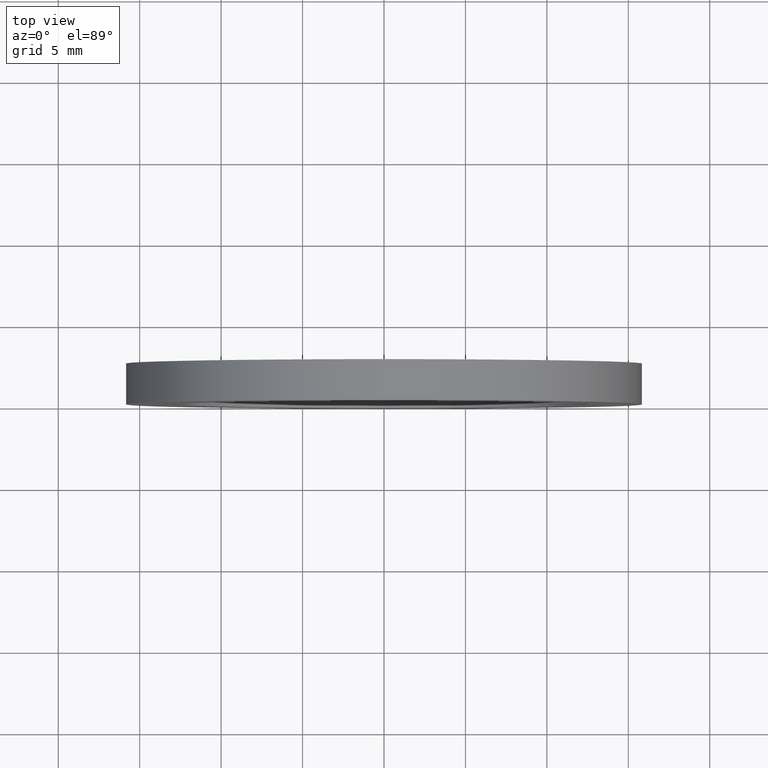
[diagram: clean part render]
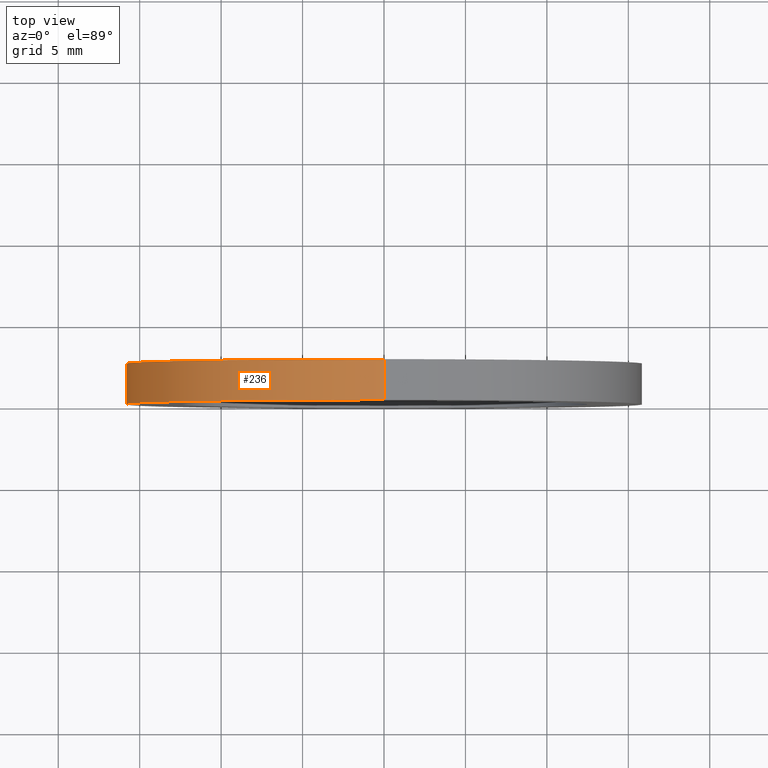
[diagram: same view with one face highlighted and labeled with its STEP entity id]
A machine part, top view. The second image highlights one B-rep face of the part: STEP entity #236.
In plain terms, the highlighted cylindrical surface (partial cylindrical patch) has radius 15.875 mm, axis along (-0, 1, -0).
Its self-contained STEP definition (entity closure, byte-faithful):
#2 = ORIENTED_EDGE ( 'NONE', *, *, #125, .F. ) ;
#5 = LINE ( 'NONE', #75, #45 ) ;
#7 = CARTESIAN_POINT ( 'NONE',  ( 1.944126793646424800E-015, 0.0000000000000000000, -15.87500000000001100 ) ) ;
#8 = AXIS2_PLACEMENT_3D ( 'NONE', #18, #124, #144 ) ;
#18 = CARTESIAN_POINT ( 'NONE',  ( 0.0000000000000000000, 0.0000000000000000000, 0.0000000000000000000 ) ) ;
#32 = ORIENTED_EDGE ( 'NONE', *, *, #148, .T. ) ;
#38 = CARTESIAN_POINT ( 'NONE',  ( 0.0000000000000000000, 2.500000000000002200, 15.87500000000001100 ) ) ;
#42 = DIRECTION ( 'NONE',  ( -0.0000000000000000000, 1.000000000000000000, -0.0000000000000000000 ) ) ;
#45 = VECTOR ( 'NONE', #62, 1000.000000000000000 ) ;
#51 = VERTEX_POINT ( 'NONE', #74 ) ;
#55 = DIRECTION ( 'NONE',  ( -0.0000000000000000000, 1.000000000000000000, -0.0000000000000000000 ) ) ;
#62 = DIRECTION ( 'NONE',  ( -0.0000000000000000000, 1.000000000000000000, -0.0000000000000000000 ) ) ;
#71 = CIRCLE ( 'NONE', #165, 15.87500000000001100 ) ;
#74 = CARTESIAN_POINT ( 'NONE',  ( 1.944126793646424800E-015, 2.500000000000002200, -15.87500000000001100 ) ) ;
#75 = CARTESIAN_POINT ( 'NONE',  ( 0.0000000000000000000, 77.14414226561778800, 15.87500000000001100 ) ) ;
#76 = VERTEX_POINT ( 'NONE', #92 ) ;
#80 = CYLINDRICAL_SURFACE ( 'NONE', #218, 15.87500000000001100 ) ;
#82 = LINE ( 'NONE', #161, #84 ) ;
#83 = EDGE_CURVE ( 'NONE', #237, #76, #192, .T. ) ;
#84 = VECTOR ( 'NONE', #55, 1000.000000000000000 ) ;
#86 = CARTESIAN_POINT ( 'NONE',  ( 0.0000000000000000000, 2.500000000000002200, 0.0000000000000000000 ) ) ;
#92 = CARTESIAN_POINT ( 'NONE',  ( 0.0000000000000000000, 0.0000000000000000000, 15.87500000000001100 ) ) ;
#109 = EDGE_CURVE ( 'NONE', #237, #51, #82, .T. ) ;
#113 = DIRECTION ( 'NONE',  ( 0.0000000000000000000, 0.0000000000000000000, 1.000000000000000000 ) ) ;
#124 = DIRECTION ( 'NONE',  ( -0.0000000000000000000, 1.000000000000000000, -0.0000000000000000000 ) ) ;
#125 = EDGE_CURVE ( 'NONE', #51, #187, #71, .T. ) ;
#144 = DIRECTION ( 'NONE',  ( 0.0000000000000000000, 0.0000000000000000000, 1.000000000000000000 ) ) ;
#148 = EDGE_CURVE ( 'NONE', #76, #187, #5, .T. ) ;
#156 = EDGE_LOOP ( 'NONE', ( #226, #213, #32, #2 ) ) ;
#161 = CARTESIAN_POINT ( 'NONE',  ( 1.944126793646424800E-015, 77.14414226561778800, -15.87500000000001100 ) ) ;
#165 = AXIS2_PLACEMENT_3D ( 'NONE', #86, #221, #180 ) ;
#180 = DIRECTION ( 'NONE',  ( 0.0000000000000000000, 0.0000000000000000000, 1.000000000000000000 ) ) ;
#187 = VERTEX_POINT ( 'NONE', #38 ) ;
#192 = CIRCLE ( 'NONE', #8, 15.87500000000001100 ) ;
#213 = ORIENTED_EDGE ( 'NONE', *, *, #83, .T. ) ;
#218 = AXIS2_PLACEMENT_3D ( 'NONE', #229, #42, #113 ) ;
#219 = FACE_OUTER_BOUND ( 'NONE', #156, .T. ) ;
#221 = DIRECTION ( 'NONE',  ( -0.0000000000000000000, 1.000000000000000000, -0.0000000000000000000 ) ) ;
#226 = ORIENTED_EDGE ( 'NONE', *, *, #109, .F. ) ;
#229 = CARTESIAN_POINT ( 'NONE',  ( 0.0000000000000000000, 77.14414226561778800, 0.0000000000000000000 ) ) ;
#236 = ADVANCED_FACE ( 'NONE', ( #219 ), #80, .T. ) ;
#237 = VERTEX_POINT ( 'NONE', #7 ) ;